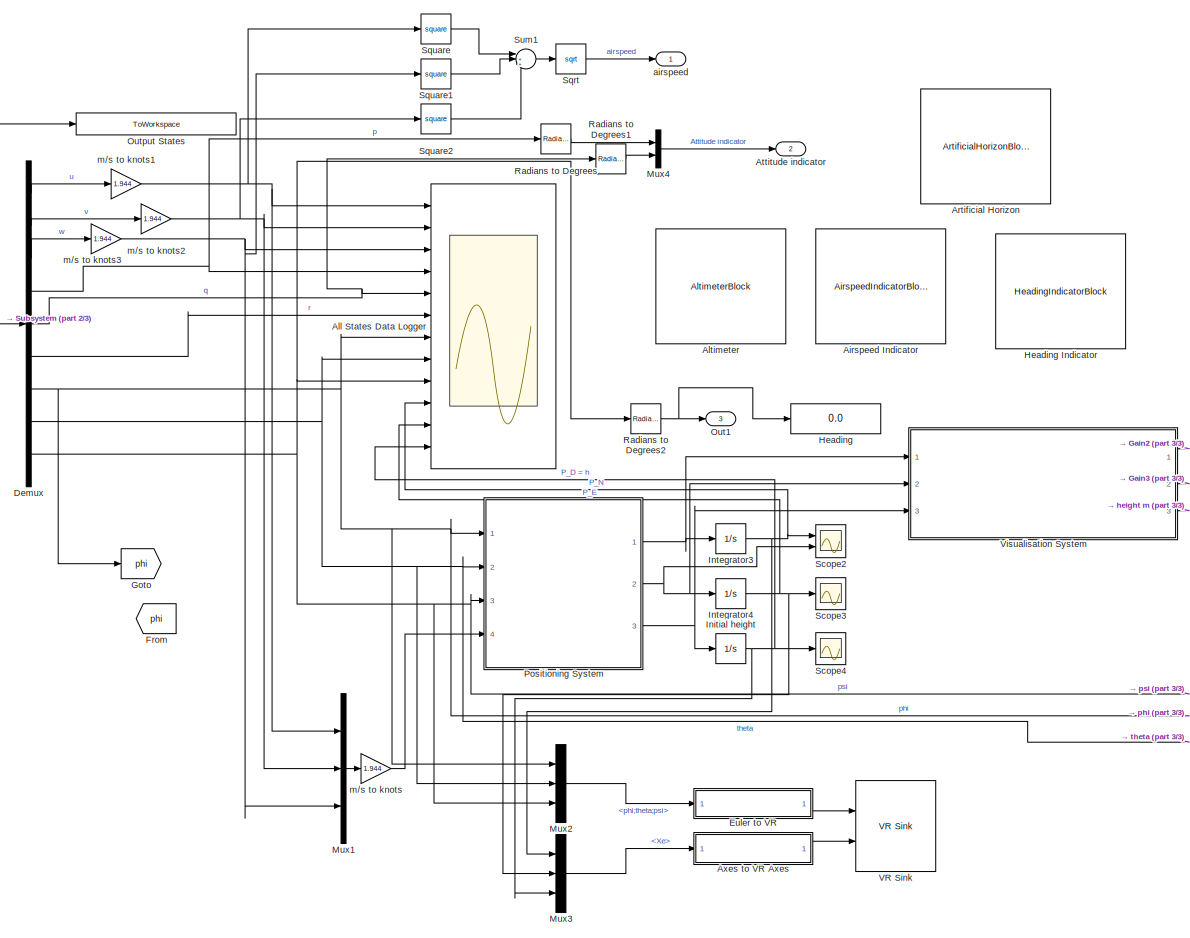
[diagram: root canvas - part 1/3, center side, full height]
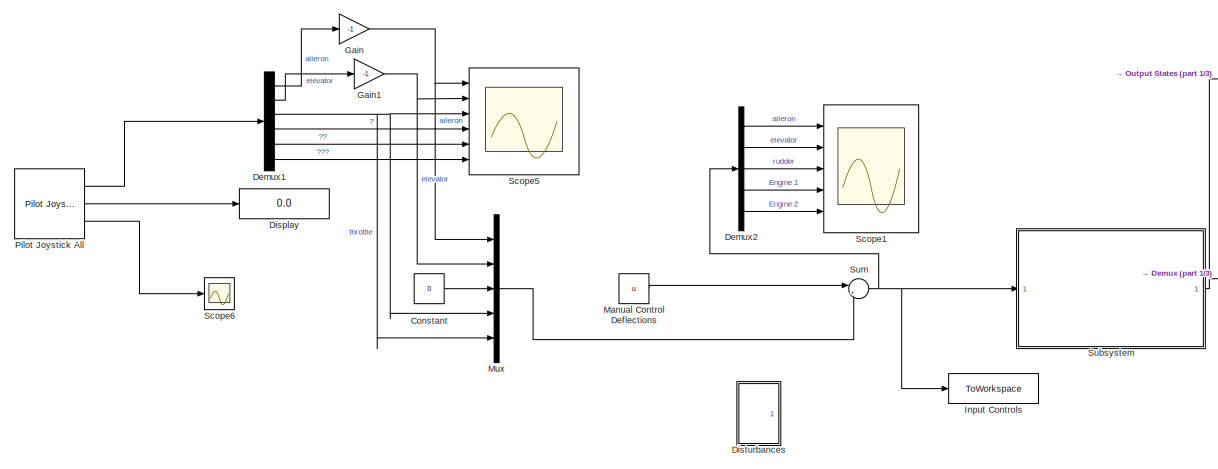
[diagram: root canvas - part 2/3, top left region]
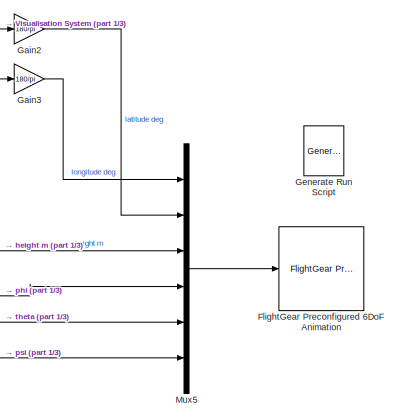
[diagram: root canvas - part 3/3, bottom right region]
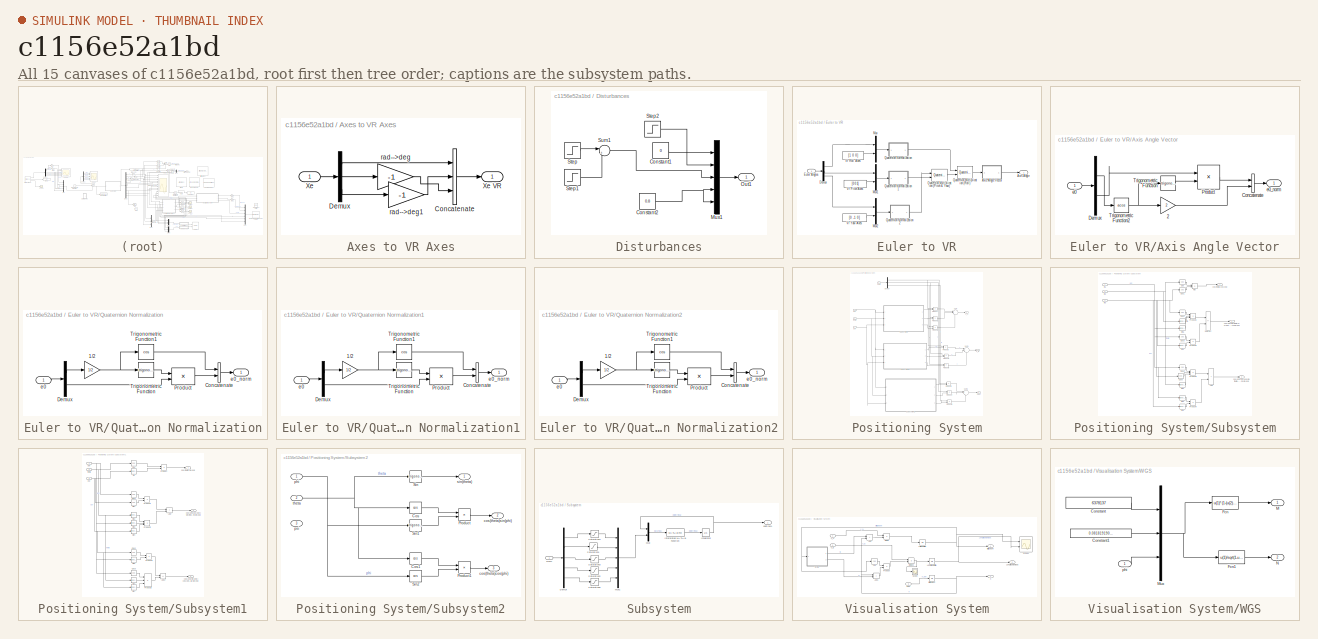
[diagram: thumbnail index - all 15 canvases of the model, root first then tree order]
MODEL slx_c1156e52a1bd
KIND model
CONFIG AbsTol = auto
CONFIG EnableMultiTasking = off
CONFIG FixedStep = 0.02
CONFIG MaxStep = auto
CONFIG MinStep = auto
CONFIG RelTol = 1e-3
CONFIG SampleTimeConstraint = Unconstrained
CONFIG Solver = ode15s
CONFIG SolverName = ode15s
CONFIG StartTime = 0.0
CONFIG StopTime = 1000
BLOCK [AirspeedIndicatorBlock] Airspeed Indicator
  ScaleMax = 350
BLOCK [Scope] All States Data Logger
  Floating = off
  NumInputPorts = 12
  Ports = [12]
  ScopeSpecificationString = Simulink.scopes.TimeScopeBlockCfg('CurrentConfiguration', extmgr.ConfigurationSet(extmgr.Configuration('Core','General UI',true),extmgr.Configuration('Core','Source UI',true),extmgr.Configuration('Sources','WiredSimulink',true,'DataLoggingVariableName','ScopeData1'),extmgr.Configuration('Visuals','Time Domain',true,'SerializedDisplays',{struct('MinYLimReal','74.04926','MaxYLimReal','169.40035','YL...<+9052ch>
BLOCK [AltimeterBlock] Altimeter
BLOCK [ArtificialHorizonBlock] Artificial Horizon
BLOCK [Outport] Attitude indicator
  Port = 2
BLOCK [SubSystem] Axes to VR Axes
  Ports = [1, 1]
  RequestExecContextInheritance = off
BLOCK [Concatenate] Axes to VR Axes/Concatenate
  NumInputs = 3
  Ports = [3, 1]
BLOCK [Demux] Axes to VR Axes/Demux
  DisplayOption = none
  Outputs = 3
  Ports = [1, 3]
BLOCK [Inport] Axes to VR Axes/Xe
BLOCK [Outport] Axes to VR Axes/Xe VR
  VectorParamsAs1DForOutWhenUnconnected = off
BLOCK [Gain] Axes to VR Axes/rad-->deg
  Gain = -1
  NameLocation = top
  OutDataTypeStr = Inherit: Same as input
  ParamDataTypeStr = Inherit: Same as input
  SaturateOnIntegerOverflow = on
BLOCK [Gain] Axes to VR Axes/rad-->deg1
  Gain = -1
  NameLocation = top
  OutDataTypeStr = Inherit: Same as input
  ParamDataTypeStr = Inherit: Same as input
  SaturateOnIntegerOverflow = on
BLOCK [Constant] Constant
  Value = 0
BLOCK [Demux] Demux
  Outputs = 9
  Ports = [1, 9]
BLOCK [Demux] Demux1
  Outputs = 6
  Ports = [1, 6]
BLOCK [Demux] Demux2
  Outputs = 5
  Ports = [1, 5]
BLOCK [Display] Display
  Decimation = 1
  Ports = [1]
BLOCK [SubSystem] Disturbances
  Commented = on
  Ports = [0, 1]
  RequestExecContextInheritance = off
BLOCK [Constant] Disturbances/Constant1
  Value = 0
BLOCK [Constant] Disturbances/Constant2
  Value = 0.8
BLOCK [Mux] Disturbances/Mux1
  DisplayOption = bar
  Inputs = 5
  Ports = [5, 1]
BLOCK [Outport] Disturbances/Out1
BLOCK [Step] Disturbances/Step
  After = -25*(pi/180)
  SampleTime = 0
  Time = 10
BLOCK [Step] Disturbances/Step1
  After = 10*(pi/180)
  SampleTime = 0
  Time = 60
BLOCK [Step] Disturbances/Step2
  After = -10*(pi/180)
  SampleTime = 0
  Time = 5
BLOCK [Sum] Disturbances/Sum1
  Inputs = |++
  Ports = [2, 1]
BLOCK [SubSystem] Euler to VR
  Ports = [1, 1]
  RequestExecContextInheritance = off
BLOCK [Outport] Euler to VR/Axis Angle
  VectorParamsAs1DForOutWhenUnconnected = off
BLOCK [SubSystem] Euler to VR/Axis Angle Vector
  Ports = [1, 1]
  RequestExecContextInheritance = off
BLOCK [Gain] Euler to VR/Axis Angle Vector/2
  Gain = 2
  OutDataTypeStr = Inherit: Same as input
  ParamDataTypeStr = Inherit: Same as input
  SaturateOnIntegerOverflow = on
BLOCK [Concatenate] Euler to VR/Axis Angle Vector/Concatenate
  Ports = [2, 1]
BLOCK [Demux] Euler to VR/Axis Angle Vector/Demux
  DisplayOption = none
  Outputs = [1 3 ]
  Ports = [1, 2]
BLOCK [Product] Euler to VR/Axis Angle Vector/Product
  InputSameDT = on
  Inputs = */
  OutDataTypeStr = Inherit: Same as first input
  Ports = [2, 1]
  SaturateOnIntegerOverflow = on
BLOCK [Trigonometry] Euler to VR/Axis Angle Vector/Trigonometric Function
  Ports = [1, 1]
BLOCK [Trigonometry] Euler to VR/Axis Angle Vector/Trigonometric Function2
  Operator = acos
  Ports = [1, 1]
BLOCK [Inport] Euler to VR/Axis Angle Vector/e0
BLOCK [Outport] Euler to VR/Axis Angle Vector/e0_norm
  VectorParamsAs1DForOutWhenUnconnected = off
BLOCK [Demux] Euler to VR/Demux
  DisplayOption = none
  Outputs = 3
  Ports = [1, 3]
BLOCK [Inport] Euler to VR/Euler Angles
BLOCK [Mux] Euler to VR/Mux
  DisplayOption = bar
  Inputs = 2
  Ports = [2, 1]
BLOCK [Mux] Euler to VR/Mux1
  DisplayOption = bar
  Inputs = 2
  Ports = [2, 1]
BLOCK [Mux] Euler to VR/Mux2
  DisplayOption = bar
  Inputs = 2
  Ports = [2, 1]
BLOCK [Reference] Euler to VR/Quaternion Multiplication (Pitch & Yaw)  REF=aerolibutil/Quaternion
Multiplication
  Ports = [2, 1]
  SourceBlock = aerolibutil/Quaternion\nMultiplication
  SourceProductBaseCode = AE
  SourceType = Quaternion Multiplication
BLOCK [Reference] Euler to VR/Quaternion Multiplication (Roll)  REF=aerolibutil/Quaternion
Multiplication
  Ports = [2, 1]
  SourceBlock = aerolibutil/Quaternion\nMultiplication
  SourceProductBaseCode = AE
  SourceType = Quaternion Multiplication
BLOCK [SubSystem] Euler to VR/Quaternion Normalization
  Ports = [1, 1]
  RequestExecContextInheritance = off
BLOCK [Gain] Euler to VR/Quaternion Normalization/1//2
  Gain = 1/2
  OutDataTypeStr = Inherit: Same as input
  ParamDataTypeStr = Inherit: Same as input
  SaturateOnIntegerOverflow = on
BLOCK [Concatenate] Euler to VR/Quaternion Normalization/Concatenate
  Ports = [2, 1]
BLOCK [Demux] Euler to VR/Quaternion Normalization/Demux
  DisplayOption = none
  Outputs = [1 3]
  Ports = [1, 2]
BLOCK [Product] Euler to VR/Quaternion Normalization/Product
  InputSameDT = on
  OutDataTypeStr = Inherit: Same as first input
  Ports = [2, 1]
  SaturateOnIntegerOverflow = on
BLOCK [Trigonometry] Euler to VR/Quaternion Normalization/Trigonometric Function
  Ports = [1, 1]
BLOCK [Trigonometry] Euler to VR/Quaternion Normalization/Trigonometric Function1
  Operator = cos
  Ports = [1, 1]
BLOCK [Inport] Euler to VR/Quaternion Normalization/e0
BLOCK [Outport] Euler to VR/Quaternion Normalization/e0_norm
  VectorParamsAs1DForOutWhenUnconnected = off
BLOCK [SubSystem] Euler to VR/Quaternion Normalization1
  Ports = [1, 1]
  RequestExecContextInheritance = off
BLOCK [Gain] Euler to VR/Quaternion Normalization1/1//2
  Gain = 1/2
  OutDataTypeStr = Inherit: Same as input
  ParamDataTypeStr = Inherit: Same as input
  SaturateOnIntegerOverflow = on
BLOCK [Concatenate] Euler to VR/Quaternion Normalization1/Concatenate
  Ports = [2, 1]
BLOCK [Demux] Euler to VR/Quaternion Normalization1/Demux
  DisplayOption = none
  Outputs = [1 3]
  Ports = [1, 2]
BLOCK [Product] Euler to VR/Quaternion Normalization1/Product
  InputSameDT = on
  OutDataTypeStr = Inherit: Same as first input
  Ports = [2, 1]
  SaturateOnIntegerOverflow = on
BLOCK [Trigonometry] Euler to VR/Quaternion Normalization1/Trigonometric Function
  Ports = [1, 1]
BLOCK [Trigonometry] Euler to VR/Quaternion Normalization1/Trigonometric Function1
  Operator = cos
  Ports = [1, 1]
BLOCK [Inport] Euler to VR/Quaternion Normalization1/e0
BLOCK [Outport] Euler to VR/Quaternion Normalization1/e0_norm
  VectorParamsAs1DForOutWhenUnconnected = off
BLOCK [SubSystem] Euler to VR/Quaternion Normalization2
  Ports = [1, 1]
  RequestExecContextInheritance = off
BLOCK [Gain] Euler to VR/Quaternion Normalization2/1//2
  Gain = 1/2
  OutDataTypeStr = Inherit: Same as input
  ParamDataTypeStr = Inherit: Same as input
  SaturateOnIntegerOverflow = on
BLOCK [Concatenate] Euler to VR/Quaternion Normalization2/Concatenate
  Ports = [2, 1]
BLOCK [Demux] Euler to VR/Quaternion Normalization2/Demux
  DisplayOption = none
  Outputs = [1 3]
  Ports = [1, 2]
BLOCK [Product] Euler to VR/Quaternion Normalization2/Product
  InputSameDT = on
  OutDataTypeStr = Inherit: Same as first input
  Ports = [2, 1]
  SaturateOnIntegerOverflow = on
BLOCK [Trigonometry] Euler to VR/Quaternion Normalization2/Trigonometric Function
  Ports = [1, 1]
BLOCK [Trigonometry] Euler to VR/Quaternion Normalization2/Trigonometric Function1
  Operator = cos
  Ports = [1, 1]
BLOCK [Inport] Euler to VR/Quaternion Normalization2/e0
BLOCK [Outport] Euler to VR/Quaternion Normalization2/e0_norm
  VectorParamsAs1DForOutWhenUnconnected = off
BLOCK [Constant] Euler to VR/Vr Pitch Axes
  NameLocation = top
  Value = [0 0 1]
BLOCK [Constant] Euler to VR/Vr Roll Axes
  NameLocation = top
  Value = [1 0 0]
BLOCK [Constant] Euler to VR/Vr Yaw Axes
  Value = [0 -1 0]
BLOCK [Reference] FlightGear Preconfigured 6DoF Animation  REF=aerolibfltsims/FlightGear
Preconfigured
6DoF Animation
  AttributesFormatString = Version Selected: %<xFlightGearVersion>
  Ports = [1]
  SourceBlock = aerolibfltsims/FlightGear\nPreconfigured\n6DoF Animation
  SourceProductBaseCode = AE
  SourceType = FlightGearQuick6DoFAnimation
BLOCK [From] From
  GotoTag = phi
BLOCK [Gain] Gain
  Gain = -1
BLOCK [Gain] Gain1
  Gain = -1
BLOCK [Gain] Gain2
  Gain = 180/pi
BLOCK [Gain] Gain3
  Gain = 180/pi
BLOCK [Reference] Generate Run Script  REF=aerolibfltsims/Generate
Run Script
  Ports = []
  SourceBlock = aerolibfltsims/Generate\nRun Script
  SourceProductBaseCode = AE
  SourceType = Generate FlightGear Run Script
BLOCK [Goto] Goto
  GotoTag = phi
BLOCK [Display] Heading
  Decimation = 1
  Ports = [1]
BLOCK [HeadingIndicatorBlock] Heading Indicator
BLOCK [Integrator] Initial height
  InitialCondition = 1000
  Ports = [1, 1]
BLOCK [ToWorkspace] Input Controls
  FixptAsFi = on
  MaxDataPoints = inf
  Ports = [1]
  SampleTime = -1
  SaveFormat = Timeseries
  VariableName = simU
BLOCK [Integrator] Integrator3
  Ports = [1, 1]
BLOCK [Integrator] Integrator4
  Ports = [1, 1]
BLOCK [Constant] Manual Control Deflections
  Value = u
BLOCK [Mux] Mux
  DisplayOption = bar
  Inputs = 5
  Ports = [5, 1]
BLOCK [Mux] Mux1
  DisplayOption = bar
  Inputs = 3
  Ports = [3, 1]
BLOCK [Mux] Mux2
  DisplayOption = bar
  Inputs = 3
  Ports = [3, 1]
BLOCK [Mux] Mux3
  DisplayOption = bar
  Inputs = 3
  Ports = [3, 1]
BLOCK [Mux] Mux4
  DisplayOption = bar
  Inputs = 2
  Ports = [2, 1]
BLOCK [Mux] Mux5
  DisplayOption = bar
  Inputs = 6
  Ports = [6, 1]
BLOCK [Outport] Out1
  Port = 3
BLOCK [ToWorkspace] Output States
  FixptAsFi = on
  MaxDataPoints = inf
  Ports = [1]
  SampleTime = -1
  SaveFormat = Timeseries
  VariableName = simX
BLOCK [Reference] Pilot Joystick All  REF=aerolibanimutils/Pilot Joystick
  Ports = [0, 3]
  SourceBlock = aerolibanimutils/Pilot Joystick
  SourceProductBaseCode = AE
  SourceType = PilotJoystick
BLOCK [SubSystem] Positioning System
  Ports = [4, 3]
  RequestExecContextInheritance = off
BLOCK [Demux] Positioning System/Demux
  Outputs = 3
  Ports = [1, 3]
BLOCK [Product] Positioning System/Product
  Ports = [2, 1]
BLOCK [Product] Positioning System/Product1
  Ports = [2, 1]
BLOCK [Product] Positioning System/Product2
  Ports = [2, 1]
BLOCK [Product] Positioning System/Product3
  Ports = [2, 1]
BLOCK [Product] Positioning System/Product4
  Ports = [2, 1]
BLOCK [Product] Positioning System/Product5
  Ports = [2, 1]
BLOCK [Product] Positioning System/Product6
  Ports = [2, 1]
BLOCK [Product] Positioning System/Product7
  Ports = [2, 1]
BLOCK [Product] Positioning System/Product8
  Ports = [2, 1]
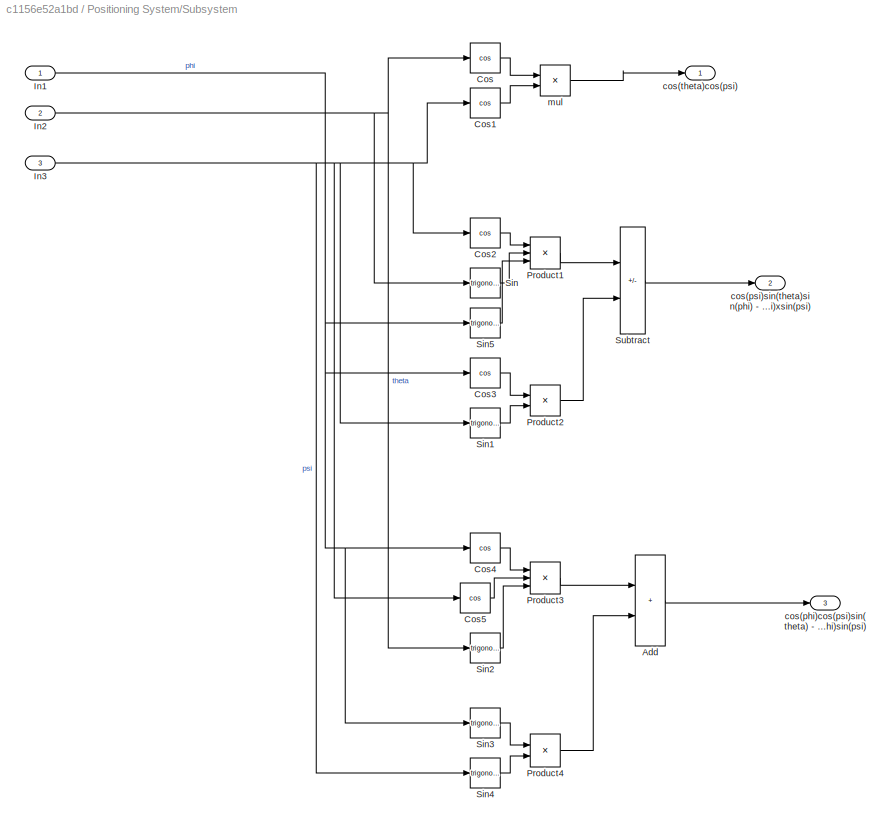
BLOCK [SubSystem] Positioning System/Subsystem
  Ports = [3, 3]
  RequestExecContextInheritance = off
BLOCK [Sum] Positioning System/Subsystem/Add
  IconShape = rectangular
  Ports = [2, 1]
BLOCK [Trigonometry] Positioning System/Subsystem/Cos
  Operator = cos
  Ports = [1, 1]
BLOCK [Trigonometry] Positioning System/Subsystem/Cos1
  Operator = cos
  Ports = [1, 1]
BLOCK [Trigonometry] Positioning System/Subsystem/Cos2
  Operator = cos
  Ports = [1, 1]
BLOCK [Trigonometry] Positioning System/Subsystem/Cos3
  Operator = cos
  Ports = [1, 1]
BLOCK [Trigonometry] Positioning System/Subsystem/Cos4
  Operator = cos
  Ports = [1, 1]
BLOCK [Trigonometry] Positioning System/Subsystem/Cos5
  Operator = cos
  Ports = [1, 1]
BLOCK [Inport] Positioning System/Subsystem/In1
BLOCK [Inport] Positioning System/Subsystem/In2
  Port = 2
BLOCK [Inport] Positioning System/Subsystem/In3
  Port = 3
BLOCK [Product] Positioning System/Subsystem/Product1
  Inputs = 3
  Ports = [3, 1]
BLOCK [Product] Positioning System/Subsystem/Product2
  Ports = [2, 1]
BLOCK [Product] Positioning System/Subsystem/Product3
  Inputs = 3
  Ports = [3, 1]
BLOCK [Product] Positioning System/Subsystem/Product4
  Ports = [2, 1]
BLOCK [Trigonometry] Positioning System/Subsystem/Sin
  Ports = [1, 1]
BLOCK [Trigonometry] Positioning System/Subsystem/Sin1
  Ports = [1, 1]
BLOCK [Trigonometry] Positioning System/Subsystem/Sin2
  Ports = [1, 1]
BLOCK [Trigonometry] Positioning System/Subsystem/Sin3
  Ports = [1, 1]
BLOCK [Trigonometry] Positioning System/Subsystem/Sin4
  Ports = [1, 1]
BLOCK [Trigonometry] Positioning System/Subsystem/Sin5
  Ports = [1, 1]
BLOCK [Sum] Positioning System/Subsystem/Subtract
  IconShape = rectangular
  Inputs = +-
  Ports = [2, 1]
BLOCK [Outport] Positioning System/Subsystem/cos(phi)cos(psi)sin(theta) - sin(phi)sin(psi)
  Port = 3
BLOCK [Outport] Positioning System/Subsystem/cos(psi)sin(theta)sin(phi) - cos(phi)xsin(psi)
  Port = 2
BLOCK [Outport] Positioning System/Subsystem/cos(theta)cos(psi)
BLOCK [Product] Positioning System/Subsystem/mul
  Ports = [2, 1]
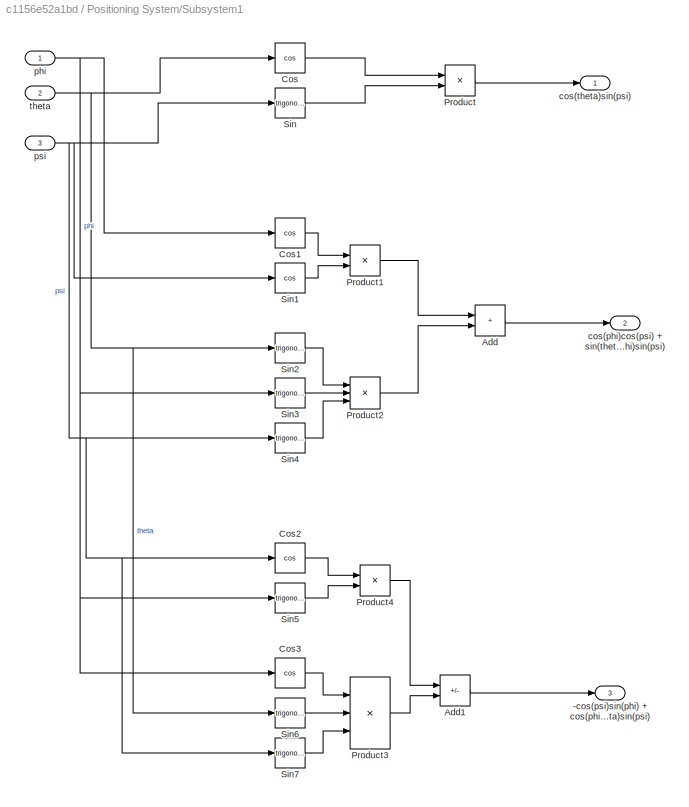
BLOCK [SubSystem] Positioning System/Subsystem1
  Ports = [3, 3]
  RequestExecContextInheritance = off
BLOCK [Outport] Positioning System/Subsystem1/-cos(psi)sin(phi) + cos(phi)sin(theta)sin(psi)
  Port = 3
BLOCK [Sum] Positioning System/Subsystem1/Add
  IconShape = rectangular
  Ports = [2, 1]
BLOCK [Sum] Positioning System/Subsystem1/Add1
  IconShape = rectangular
  Inputs = -+
  Ports = [2, 1]
BLOCK [Trigonometry] Positioning System/Subsystem1/Cos
  Operator = cos
  Ports = [1, 1]
BLOCK [Trigonometry] Positioning System/Subsystem1/Cos1
  Operator = cos
  Ports = [1, 1]
BLOCK [Trigonometry] Positioning System/Subsystem1/Cos2
  Operator = cos
  Ports = [1, 1]
BLOCK [Trigonometry] Positioning System/Subsystem1/Cos3
  Operator = cos
  Ports = [1, 1]
BLOCK [Product] Positioning System/Subsystem1/Product
  Ports = [2, 1]
BLOCK [Product] Positioning System/Subsystem1/Product1
  Ports = [2, 1]
BLOCK [Product] Positioning System/Subsystem1/Product2
  Inputs = 3
  Ports = [3, 1]
BLOCK [Product] Positioning System/Subsystem1/Product3
  Inputs = 3
  Ports = [3, 1]
BLOCK [Product] Positioning System/Subsystem1/Product4
  Ports = [2, 1]
BLOCK [Trigonometry] Positioning System/Subsystem1/Sin
  Ports = [1, 1]
BLOCK [Trigonometry] Positioning System/Subsystem1/Sin1
  Operator = cos
  Ports = [1, 1]
BLOCK [Trigonometry] Positioning System/Subsystem1/Sin2
  Ports = [1, 1]
BLOCK [Trigonometry] Positioning System/Subsystem1/Sin3
  Ports = [1, 1]
BLOCK [Trigonometry] Positioning System/Subsystem1/Sin4
  Ports = [1, 1]
BLOCK [Trigonometry] Positioning System/Subsystem1/Sin5
  Ports = [1, 1]
BLOCK [Trigonometry] Positioning System/Subsystem1/Sin6
  Ports = [1, 1]
BLOCK [Trigonometry] Positioning System/Subsystem1/Sin7
  Ports = [1, 1]
BLOCK [Outport] Positioning System/Subsystem1/cos(phi)cos(psi) + sin(theta)sin(phi)sin(psi)
  Port = 2
BLOCK [Outport] Positioning System/Subsystem1/cos(theta)sin(psi)
BLOCK [Inport] Positioning System/Subsystem1/phi
BLOCK [Inport] Positioning System/Subsystem1/psi
  Port = 3
BLOCK [Inport] Positioning System/Subsystem1/theta
  Port = 2
BLOCK [SubSystem] Positioning System/Subsystem2
  Ports = [3, 3]
  RequestExecContextInheritance = off
BLOCK [Trigonometry] Positioning System/Subsystem2/Cos
  Operator = cos
  Ports = [1, 1]
BLOCK [Trigonometry] Positioning System/Subsystem2/Cos1
  Operator = cos
  Ports = [1, 1]
BLOCK [Product] Positioning System/Subsystem2/Product
  Ports = [2, 1]
BLOCK [Product] Positioning System/Subsystem2/Product1
  Ports = [2, 1]
BLOCK [Trigonometry] Positioning System/Subsystem2/Sin
  Ports = [1, 1]
BLOCK [Trigonometry] Positioning System/Subsystem2/Sin1
  Ports = [1, 1]
BLOCK [Trigonometry] Positioning System/Subsystem2/Sin2
  Operator = cos
  Ports = [1, 1]
BLOCK [Outport] Positioning System/Subsystem2/cos(theta)cos(phi)
  Port = 3
BLOCK [Outport] Positioning System/Subsystem2/cos(theta)sin(phi)
  Port = 2
BLOCK [Inport] Positioning System/Subsystem2/phi
BLOCK [Inport] Positioning System/Subsystem2/psi
  Port = 3
BLOCK [Outport] Positioning System/Subsystem2/sin(theta)
BLOCK [Inport] Positioning System/Subsystem2/theta
  Port = 2
BLOCK [Sum] Positioning System/Sum
  Inputs = |+++
  Ports = [3, 1]
BLOCK [Sum] Positioning System/Sum1
  Inputs = |+++
  Ports = [3, 1]
BLOCK [Sum] Positioning System/Sum2
  Inputs = |+--
  Ports = [3, 1]
BLOCK [Outport] Positioning System/V_E
  Port = 2
BLOCK [Outport] Positioning System/V_N
BLOCK [Outport] Positioning System/hdot
  Port = 3
BLOCK [Inport] Positioning System/phi
BLOCK [Inport] Positioning System/psi
  Port = 3
BLOCK [Inport] Positioning System/theta
  Port = 2
BLOCK [Inport] Positioning System/u,v,w
  Port = 4
BLOCK [Reference] Radians to Degrees  REF=simulink_extras/Transformations/Radians
to Degrees
  Ports = [1, 1]
  SourceBlock = simulink_extras/Transformations/Radians\nto Degrees
  SourceProductBaseCode = SL
  SourceType = RadiansToDegrees
BLOCK [Reference] Radians to Degrees1  REF=simulink_extras/Transformations/Radians
to Degrees
  Ports = [1, 1]
  SourceBlock = simulink_extras/Transformations/Radians\nto Degrees
  SourceProductBaseCode = SL
  SourceType = RadiansToDegrees
BLOCK [Reference] Radians to Degrees2  REF=simulink_extras/Transformations/Radians
to Degrees
  Ports = [1, 1]
  SourceBlock = simulink_extras/Transformations/Radians\nto Degrees
  SourceProductBaseCode = SL
  SourceType = RadiansToDegrees
BLOCK [Scope] Scope1
  Floating = off
  NumInputPorts = 5
  Ports = [5]
  ScopeSpecificationString = Simulink.scopes.TimeScopeBlockCfg('CurrentConfiguration', extmgr.ConfigurationSet(extmgr.Configuration('Core','General UI',true),extmgr.Configuration('Core','Source UI',true),extmgr.Configuration('Sources','WiredSimulink',true,'DataLoggingVariableName','ScopeData1'),extmgr.Configuration('Visuals','Time Domain',true,'SerializedDisplays',{struct('MinYLimReal','-1.00000','MaxYLimReal','1.00000','YLab...<+6321ch>
BLOCK [Scope] Scope2
  Floating = off
  NumInputPorts = 2
  Ports = [2]
  ScopeSpecificationString = Simulink.scopes.TimeScopeBlockCfg('CurrentConfiguration', extmgr.ConfigurationSet(extmgr.Configuration('Core','General UI',true),extmgr.Configuration('Core','Source UI',true),extmgr.Configuration('Sources','WiredSimulink',true,'DataLoggingVariableName','ScopeData2'),extmgr.Configuration('Visuals','Time Domain',true,'SerializedDisplays',{struct('MinYLimReal','-120.63482','MaxYLimReal','1085.71334',...<+1756ch>
BLOCK [Scope] Scope3
  Floating = off
  NumInputPorts = 1
  Ports = [1]
  ScopeSpecificationString = Simulink.scopes.TimeScopeBlockCfg('CurrentConfiguration', extmgr.ConfigurationSet(extmgr.Configuration('Core','General UI',true),extmgr.Configuration('Core','Source UI',true),extmgr.Configuration('Sources','WiredSimulink',true,'DataLoggingVariableName','ScopeData3'),extmgr.Configuration('Visuals','Time Domain',true,'SerializedDisplays',{struct('MinYLimReal','-1.00000','MaxYLimReal','1.00000','YLab...<+1362ch>
BLOCK [Scope] Scope4
  Floating = off
  NumInputPorts = 1
  Ports = [1]
  ScopeSpecificationString = Simulink.scopes.TimeScopeBlockCfg('CurrentConfiguration', extmgr.ConfigurationSet(extmgr.Configuration('Core','General UI',true),extmgr.Configuration('Core','Source UI',true),extmgr.Configuration('Sources','WiredSimulink',true,'DataLoggingVariableName','ScopeData4'),extmgr.Configuration('Visuals','Time Domain',true,'SerializedDisplays',{struct('MinYLimReal','-21153.0035','MaxYLimReal','13461.46326...<+1440ch>
BLOCK [Scope] Scope5
  Floating = off
  NumInputPorts = 6
  Ports = [6]
  ScopeSpecificationString = Simulink.scopes.TimeScopeBlockCfg('CurrentConfiguration', extmgr.ConfigurationSet(extmgr.Configuration('Core','General UI',true),extmgr.Configuration('Core','Source UI',true),extmgr.Configuration('Sources','WiredSimulink',true,'DataLoggingVariableName','ScopeData1'),extmgr.Configuration('Visuals','Time Domain',true,'SerializedDisplays',{struct('MinYLimReal','-1.22855','MaxYLimReal','1.05664','YLab...<+4789ch>
BLOCK [Scope] Scope6
  Floating = off
  NumInputPorts = 1
  Ports = [1]
  ScopeSpecificationString = Simulink.scopes.TimeScopeBlockCfg('CurrentConfiguration', extmgr.ConfigurationSet(extmgr.Configuration('Core','General UI',true),extmgr.Configuration('Core','Source UI',true),extmgr.Configuration('Sources','WiredSimulink',true,'DataLoggingVariableName','ScopeData2'),extmgr.Configuration('Visuals','Time Domain',true,'SerializedDisplays',{struct('MinYLimReal','-1.00000','MaxYLimReal','1.00000','YLab...<+1410ch>
BLOCK [Sqrt] Sqrt
BLOCK [Math] Square
  Operator = square
  Ports = [1, 1]
BLOCK [Math] Square1
  Operator = square
  Ports = [1, 1]
BLOCK [Math] Square2
  Operator = square
  Ports = [1, 1]
BLOCK [SubSystem] Subsystem
  Ports = [1, 1]
  RequestExecContextInheritance = off
BLOCK [Demux] Subsystem/Demux
  Outputs = 5
  Ports = [1, 5]
BLOCK [Integrator] Subsystem/Integrator
  InitialCondition = x0
  Ports = [1, 1]
BLOCK [MATLABFcn] Subsystem/Interpreted MATLAB Function
  MATLABFcn = RCAM_plant(u(1:9),u(10:14))
  Ports = [1, 1]
BLOCK [Mux] Subsystem/Mux
  DisplayOption = bar
  Inputs = 2
  Ports = [2, 1]
BLOCK [Mux] Subsystem/Mux1
  DisplayOption = bar
  Inputs = 5
  Ports = [5, 1]
BLOCK [Saturate] Subsystem/Saturation1
  LowerLimit = u2min
  UpperLimit = u2max
BLOCK [Saturate] Subsystem/Saturation2
  LowerLimit = u4min
  UpperLimit = u4max
BLOCK [Saturate] Subsystem/Saturation3
  LowerLimit = u3min
  UpperLimit = u3max
BLOCK [Saturate] Subsystem/Saturation4
  LowerLimit = u1min
  UpperLimit = u1max
BLOCK [Saturate] Subsystem/Saturation6
  LowerLimit = u5min
  UpperLimit = u5max
BLOCK [Inport] Subsystem/u(5x1)
BLOCK [Outport] Subsystem/xdot(9x1)
BLOCK [Sum] Sum
  Inputs = |++
  Ports = [2, 1]
BLOCK [Sum] Sum1
  Inputs = |+++
  Ports = [3, 1]
BLOCK [Reference] VR Sink  REF=vrlib/VR Sink
  InstantiateOnLoad = on
  Ports = [2]
  SourceBlock = vrlib/VR Sink
  SourceProductBaseCode = SL
  SourceType = Virtual Reality Sink
BLOCK [SubSystem] Visualisation System
  Ports = [3, 3]
  RequestExecContextInheritance = off
BLOCK [Sum] Visualisation System/Add
  IconShape = rectangular
  Ports = [2, 1]
BLOCK [Sum] Visualisation System/Add1
  IconShape = rectangular
  Ports = [2, 1]
BLOCK [Trigonometry] Visualisation System/Cos
  ApproximationMethod = CORDIC
  Operator = cos
  Ports = [1, 1]
BLOCK [Product] Visualisation System/Divide
  Inputs = */
  Ports = [2, 1]
BLOCK [Product] Visualisation System/Divide2
  Inputs = */
  Ports = [2, 1]
BLOCK [Integrator] Visualisation System/Initial height
  InitialCondition = 1000
  Ports = [1, 1]
BLOCK [Integrator] Visualisation System/Latitude initial 
  InitialCondition = deg2rad(21.32451389)
  Ports = [1, 1]
BLOCK [Integrator] Visualisation System/Longitude initial
  InitialCondition = deg2rad(-157.92507222)
  Ports = [1, 1]
BLOCK [Outport] Visualisation System/Longitude lambda
  Port = 2
BLOCK [Product] Visualisation System/Product
  Ports = [2, 1]
BLOCK [Scope] Visualisation System/Scope
  Floating = off
  NumInputPorts = 1
  Ports = [1]
  ScopeSpecificationString = Simulink.scopes.TimeScopeBlockCfg('CurrentConfiguration', extmgr.ConfigurationSet(extmgr.Configuration('Core','General UI',true),extmgr.Configuration('Core','Source UI',true),extmgr.Configuration('Sources','WiredSimulink',true,'DataLoggingVariableName','ScopeData1'),extmgr.Configuration('Visuals','Time Domain',true,'SerializedDisplays',{struct('MinYLimReal','-1.00000','MaxYLimReal','1.00000','YLab...<+1366ch>
BLOCK [Scope] Visualisation System/Scope1
  Floating = off
  NumInputPorts = 2
  Ports = [2]
  ScopeSpecificationString = Simulink.scopes.TimeScopeBlockCfg('CurrentConfiguration', extmgr.ConfigurationSet(extmgr.Configuration('Core','General UI',true),extmgr.Configuration('Core','Source UI',true),extmgr.Configuration('Sources','WiredSimulink',true,'DataLoggingVariableName','ScopeData2'),extmgr.Configuration('Visuals','Time Domain',true,'SerializedDisplays',{struct('MinYLimReal','-180.33127','MaxYLimReal','43.73071','Y...<+1764ch>
BLOCK [Inport] Visualisation System/V_E
  Port = 2
BLOCK [Inport] Visualisation System/V_N
BLOCK [SubSystem] Visualisation System/WGS
  Ports = [1, 2]
  RequestExecContextInheritance = off
BLOCK [Constant] Visualisation System/WGS/Constant
  Value = 6378137
BLOCK [Constant] Visualisation System/WGS/Constant1
  Value = 0.081819190842622
BLOCK [Fcn] Visualisation System/WGS/Fcn
  Expr = u(1)*(1-(u(2)^2))/((1-(u(2)^2)*(sin(u(3))^2))^(3/2))
BLOCK [Fcn] Visualisation System/WGS/Fcn1
  Expr = u(1)/sqrt(1-u(2)^2)*(sin(u(3))^2)
BLOCK [Outport] Visualisation System/WGS/M
BLOCK [Mux] Visualisation System/WGS/Mux
  DisplayOption = bar
  Inputs = 3
  Ports = [3, 1]
BLOCK [Outport] Visualisation System/WGS/N
  Port = 2
BLOCK [Inport] Visualisation System/WGS/phi
BLOCK [Outport] Visualisation System/h
  Port = 3
BLOCK [Inport] Visualisation System/hdot
  Port = 3
BLOCK [Outport] Visualisation System/latitude phi
BLOCK [Outport] airspeed
BLOCK [Gain] m//s to knots
  Gain = 1.944
BLOCK [Gain] m//s to knots1
  Gain = 1.944
BLOCK [Gain] m//s to knots2
  Gain = 1.944
BLOCK [Gain] m//s to knots3
  Gain = 1.944
LINE Axes to VR Axes/Concatenate:1 -> Axes to VR Axes/Xe VR:1
LINE Axes to VR Axes/Demux:1 -> Axes to VR Axes/Concatenate:1
LINE Axes to VR Axes/Demux:2 -> Axes to VR Axes/rad-->deg:1
LINE Axes to VR Axes/Demux:3 -> Axes to VR Axes/rad-->deg1:1
LINE Axes to VR Axes/Xe:1 -> Axes to VR Axes/Demux:1
LINE Axes to VR Axes/rad-->deg1:1 -> Axes to VR Axes/Concatenate:2
LINE Axes to VR Axes/rad-->deg:1 -> Axes to VR Axes/Concatenate:3
LINE Axes to VR Axes:1 -> VR Sink:2
LINE Constant:1 -> Mux:3
LINE Demux1:1 -> Gain:1
LINE Demux1:2 -> Gain1:1
NET Demux1:3 -> Mux:4, Mux:5, Scope5:3
LINE Demux1:4 -> Scope5:4
LINE Demux1:5 -> Scope5:5
LINE Demux1:6 -> Scope5:6
LINE Demux2:1 -> Scope1:1
LINE Demux2:2 -> Scope1:2
LINE Demux2:3 -> Scope1:3
LINE Demux2:4 -> Scope1:4
LINE Demux2:5 -> Scope1:5
LINE Demux:1 -> m//s to knots1:1
LINE Demux:2 -> m//s to knots2:1
LINE Demux:3 -> m//s to knots3:1
NET Demux:4 -> All States Data Logger:4, Radians to Degrees:1
NET Demux:5 -> All States Data Logger:5, Radians to Degrees1:1
LINE Demux:6 -> All States Data Logger:6
NET Demux:7 -> All States Data Logger:7, Goto:1, Mux2:1, Mux5:4, Positioning System:1
NET Demux:8 -> All States Data Logger:8, Mux2:2, Mux5:5, Positioning System:2
NET Demux:9 -> All States Data Logger:9, Mux2:3, Mux5:6, Positioning System:3, Radians to Degrees2:1
LINE Disturbances/Constant1:1 -> Disturbances/Mux1:1
NET Disturbances/Constant2:1 -> Disturbances/Mux1:4, Disturbances/Mux1:5
LINE Disturbances/Mux1:1 -> Disturbances/Out1:1
LINE Disturbances/Step1:1 -> Disturbances/Sum1:2
LINE Disturbances/Step2:1 -> Disturbances/Mux1:2
LINE Disturbances/Step:1 -> Disturbances/Sum1:1
LINE Disturbances/Sum1:1 -> Disturbances/Mux1:3
LINE Euler to VR/Axis Angle Vector/2:1 -> Euler to VR/Axis Angle Vector/Concatenate:2
LINE Euler to VR/Axis Angle Vector/Concatenate:1 -> Euler to VR/Axis Angle Vector/e0_norm:1
LINE Euler to VR/Axis Angle Vector/Demux:1 -> Euler to VR/Axis Angle Vector/Trigonometric Function2:1
LINE Euler to VR/Axis Angle Vector/Demux:2 -> Euler to VR/Axis Angle Vector/Product:1
LINE Euler to VR/Axis Angle Vector/Product:1 -> Euler to VR/Axis Angle Vector/Concatenate:1
NET Euler to VR/Axis Angle Vector/Trigonometric Function2:1 -> Euler to VR/Axis Angle Vector/2:1, Euler to VR/Axis Angle Vector/Trigonometric Function:1
LINE Euler to VR/Axis Angle Vector/Trigonometric Function:1 -> Euler to VR/Axis Angle Vector/Product:2
LINE Euler to VR/Axis Angle Vector/e0:1 -> Euler to VR/Axis Angle Vector/Demux:1
LINE Euler to VR/Axis Angle Vector:1 -> Euler to VR/Axis Angle:1
LINE Euler to VR/Demux:1 -> Euler to VR/Mux:1
LINE Euler to VR/Demux:2 -> Euler to VR/Mux1:1
LINE Euler to VR/Demux:3 -> Euler to VR/Mux2:1
LINE Euler to VR/Euler Angles:1 -> Euler to VR/Demux:1
LINE Euler to VR/Mux1:1 -> Euler to VR/Quaternion Normalization1:1
LINE Euler to VR/Mux2:1 -> Euler to VR/Quaternion Normalization2:1
LINE Euler to VR/Mux:1 -> Euler to VR/Quaternion Normalization:1
LINE Euler to VR/Quaternion Multiplication (Pitch & Yaw):1 -> Euler to VR/Quaternion Multiplication (Roll):2
LINE Euler to VR/Quaternion Multiplication (Roll):1 -> Euler to VR/Axis Angle Vector:1
NET Euler to VR/Quaternion Normalization/1//2:1 -> Euler to VR/Quaternion Normalization/Trigonometric Function1:1, Euler to VR/Quaternion Normalization/Trigonometric Function:1
LINE Euler to VR/Quaternion Normalization/Concatenate:1 -> Euler to VR/Quaternion Normalization/e0_norm:1
LINE Euler to VR/Quaternion Normalization/Demux:1 -> Euler to VR/Quaternion Normalization/1//2:1
LINE Euler to VR/Quaternion Normalization/Demux:2 -> Euler to VR/Quaternion Normalization/Product:2
LINE Euler to VR/Quaternion Normalization/Product:1 -> Euler to VR/Quaternion Normalization/Concatenate:2
LINE Euler to VR/Quaternion Normalization/Trigonometric Function1:1 -> Euler to VR/Quaternion Normalization/Concatenate:1
LINE Euler to VR/Quaternion Normalization/Trigonometric Function:1 -> Euler to VR/Quaternion Normalization/Product:1
LINE Euler to VR/Quaternion Normalization/e0:1 -> Euler to VR/Quaternion Normalization/Demux:1
NET Euler to VR/Quaternion Normalization1/1//2:1 -> Euler to VR/Quaternion Normalization1/Trigonometric Function1:1, Euler to VR/Quaternion Normalization1/Trigonometric Function:1
LINE Euler to VR/Quaternion Normalization1/Concatenate:1 -> Euler to VR/Quaternion Normalization1/e0_norm:1
LINE Euler to VR/Quaternion Normalization1/Demux:1 -> Euler to VR/Quaternion Normalization1/1//2:1
LINE Euler to VR/Quaternion Normalization1/Demux:2 -> Euler to VR/Quaternion Normalization1/Product:2
LINE Euler to VR/Quaternion Normalization1/Product:1 -> Euler to VR/Quaternion Normalization1/Concatenate:2
LINE Euler to VR/Quaternion Normalization1/Trigonometric Function1:1 -> Euler to VR/Quaternion Normalization1/Concatenate:1
LINE Euler to VR/Quaternion Normalization1/Trigonometric Function:1 -> Euler to VR/Quaternion Normalization1/Product:1
LINE Euler to VR/Quaternion Normalization1/e0:1 -> Euler to VR/Quaternion Normalization1/Demux:1
LINE Euler to VR/Quaternion Normalization1:1 -> Euler to VR/Quaternion Multiplication (Pitch & Yaw):2
NET Euler to VR/Quaternion Normalization2/1//2:1 -> Euler to VR/Quaternion Normalization2/Trigonometric Function1:1, Euler to VR/Quaternion Normalization2/Trigonometric Function:1
LINE Euler to VR/Quaternion Normalization2/Concatenate:1 -> Euler to VR/Quaternion Normalization2/e0_norm:1
LINE Euler to VR/Quaternion Normalization2/Demux:1 -> Euler to VR/Quaternion Normalization2/1//2:1
LINE Euler to VR/Quaternion Normalization2/Demux:2 -> Euler to VR/Quaternion Normalization2/Product:2
LINE Euler to VR/Quaternion Normalization2/Product:1 -> Euler to VR/Quaternion Normalization2/Concatenate:2
LINE Euler to VR/Quaternion Normalization2/Trigonometric Function1:1 -> Euler to VR/Quaternion Normalization2/Concatenate:1
LINE Euler to VR/Quaternion Normalization2/Trigonometric Function:1 -> Euler to VR/Quaternion Normalization2/Product:1
LINE Euler to VR/Quaternion Normalization2/e0:1 -> Euler to VR/Quaternion Normalization2/Demux:1
LINE Euler to VR/Quaternion Normalization2:1 -> Euler to VR/Quaternion Multiplication (Pitch & Yaw):1
LINE Euler to VR/Quaternion Normalization:1 -> Euler to VR/Quaternion Multiplication (Roll):1
LINE Euler to VR/Vr Pitch Axes:1 -> Euler to VR/Mux1:2
LINE Euler to VR/Vr Roll Axes:1 -> Euler to VR/Mux:2
LINE Euler to VR/Vr Yaw Axes:1 -> Euler to VR/Mux2:2
LINE Euler to VR:1 -> VR Sink:1
NET Gain1:1 -> Mux:2, Scope5:2
LINE Gain2:1 -> Mux5:2
LINE Gain3:1 -> Mux5:1
NET Gain:1 -> Mux:1, Scope5:1
NET Initial height:1 -> All States Data Logger:12, Mux3:3, Scope4:1
NET Integrator3:1 -> All States Data Logger:10, Mux3:1, Scope2:1
NET Integrator4:1 -> All States Data Logger:11, Mux3:2, Scope3:1
LINE Manual Control Deflections:1 -> Sum:1
LINE Mux1:1 -> m//s to knots:1
LINE Mux2:1 -> Euler to VR:1
LINE Mux3:1 -> Axes to VR Axes:1
LINE Mux4:1 -> Attitude indicator:1
LINE Mux5:1 -> FlightGear Preconfigured 6DoF Animation:1
LINE Mux:1 -> Sum:2
LINE Pilot Joystick All:1 -> Demux1:1
LINE Pilot Joystick All:2 -> Display:1
LINE Pilot Joystick All:3 -> Scope6:1
NET Positioning System/Demux:1 -> Positioning System/Product3:1, Positioning System/Product6:1, Positioning System/Product:1
NET Positioning System/Demux:2 -> Positioning System/Product1:1, Positioning System/Product4:1, Positioning System/Product7:1
NET Positioning System/Demux:3 -> Positioning System/Product2:1, Positioning System/Product5:1, Positioning System/Product8:1
LINE Positioning System/Product1:1 -> Positioning System/Sum:2
LINE Positioning System/Product2:1 -> Positioning System/Sum:3
LINE Positioning System/Product3:1 -> Positioning System/Sum1:1
LINE Positioning System/Product4:1 -> Positioning System/Sum1:2
LINE Positioning System/Product5:1 -> Positioning System/Sum1:3
LINE Positioning System/Product6:1 -> Positioning System/Sum2:1
LINE Positioning System/Product7:1 -> Positioning System/Sum2:2
LINE Positioning System/Product8:1 -> Positioning System/Sum2:3
LINE Positioning System/Product:1 -> Positioning System/Sum:1
LINE Positioning System/Subsystem/Add:1 -> Positioning System/Subsystem/cos(phi)cos(psi)sin(theta) - sin(phi)sin(psi):1
LINE Positioning System/Subsystem/Cos1:1 -> Positioning System/Subsystem/mul:2
LINE Positioning System/Subsystem/Cos2:1 -> Positioning System/Subsystem/Product1:1
LINE Positioning System/Subsystem/Cos3:1 -> Positioning System/Subsystem/Product2:1
LINE Positioning System/Subsystem/Cos4:1 -> Positioning System/Subsystem/Product3:1
LINE Positioning System/Subsystem/Cos5:1 -> Positioning System/Subsystem/Product3:2
LINE Positioning System/Subsystem/Cos:1 -> Positioning System/Subsystem/mul:1
NET Positioning System/Subsystem/In1:1 -> Positioning System/Subsystem/Cos3:1, Positioning System/Subsystem/Cos4:1, Positioning System/Subsystem/Sin3:1, Positioning System/Subsystem/Sin5:1
NET Positioning System/Subsystem/In2:1 -> Positioning System/Subsystem/Cos:1, Positioning System/Subsystem/Sin2:1, Positioning System/Subsystem/Sin:1
NET Positioning System/Subsystem/In3:1 -> Positioning System/Subsystem/Cos1:1, Positioning System/Subsystem/Cos2:1, Positioning System/Subsystem/Cos5:1, Positioning System/Subsystem/Sin1:1, Positioning System/Subsystem/Sin4:1
LINE Positioning System/Subsystem/Product1:1 -> Positioning System/Subsystem/Subtract:1
LINE Positioning System/Subsystem/Product2:1 -> Positioning System/Subsystem/Subtract:2
LINE Positioning System/Subsystem/Product3:1 -> Positioning System/Subsystem/Add:1
LINE Positioning System/Subsystem/Product4:1 -> Positioning System/Subsystem/Add:2
LINE Positioning System/Subsystem/Sin1:1 -> Positioning System/Subsystem/Product2:2
LINE Positioning System/Subsystem/Sin2:1 -> Positioning System/Subsystem/Product3:3
LINE Positioning System/Subsystem/Sin3:1 -> Positioning System/Subsystem/Product4:1
LINE Positioning System/Subsystem/Sin4:1 -> Positioning System/Subsystem/Product4:2
LINE Positioning System/Subsystem/Sin5:1 -> Positioning System/Subsystem/Product1:3
LINE Positioning System/Subsystem/Sin:1 -> Positioning System/Subsystem/Product1:2
LINE Positioning System/Subsystem/Subtract:1 -> Positioning System/Subsystem/cos(psi)sin(theta)sin(phi) - cos(phi)xsin(psi):1
LINE Positioning System/Subsystem/mul:1 -> Positioning System/Subsystem/cos(theta)cos(psi):1
LINE Positioning System/Subsystem1/Add1:1 -> Positioning System/Subsystem1/-cos(psi)sin(phi) + cos(phi)sin(theta)sin(psi):1
LINE Positioning System/Subsystem1/Add:1 -> Positioning System/Subsystem1/cos(phi)cos(psi) + sin(theta)sin(phi)sin(psi):1
LINE Positioning System/Subsystem1/Cos1:1 -> Positioning System/Subsystem1/Product1:1
LINE Positioning System/Subsystem1/Cos2:1 -> Positioning System/Subsystem1/Product4:1
LINE Positioning System/Subsystem1/Cos3:1 -> Positioning System/Subsystem1/Product3:1
LINE Positioning System/Subsystem1/Cos:1 -> Positioning System/Subsystem1/Product:1
LINE Positioning System/Subsystem1/Product1:1 -> Positioning System/Subsystem1/Add:1
LINE Positioning System/Subsystem1/Product2:1 -> Positioning System/Subsystem1/Add:2
LINE Positioning System/Subsystem1/Product3:1 -> Positioning System/Subsystem1/Add1:2
LINE Positioning System/Subsystem1/Product4:1 -> Positioning System/Subsystem1/Add1:1
LINE Positioning System/Subsystem1/Product:1 -> Positioning System/Subsystem1/cos(theta)sin(psi):1
LINE Positioning System/Subsystem1/Sin1:1 -> Positioning System/Subsystem1/Product1:2
LINE Positioning System/Subsystem1/Sin2:1 -> Positioning System/Subsystem1/Product2:1
LINE Positioning System/Subsystem1/Sin3:1 -> Positioning System/Subsystem1/Product2:2
LINE Positioning System/Subsystem1/Sin4:1 -> Positioning System/Subsystem1/Product2:3
LINE Positioning System/Subsystem1/Sin5:1 -> Positioning System/Subsystem1/Product4:2
LINE Positioning System/Subsystem1/Sin6:1 -> Positioning System/Subsystem1/Product3:2
LINE Positioning System/Subsystem1/Sin7:1 -> Positioning System/Subsystem1/Product3:3
LINE Positioning System/Subsystem1/Sin:1 -> Positioning System/Subsystem1/Product:2
NET Positioning System/Subsystem1/phi:1 -> Positioning System/Subsystem1/Cos1:1, Positioning System/Subsystem1/Cos3:1, Positioning System/Subsystem1/Sin3:1, Positioning System/Subsystem1/Sin5:1
NET Positioning System/Subsystem1/psi:1 -> Positioning System/Subsystem1/Cos2:1, Positioning System/Subsystem1/Sin1:1, Positioning System/Subsystem1/Sin4:1, Positioning System/Subsystem1/Sin7:1, Positioning System/Subsystem1/Sin:1
NET Positioning System/Subsystem1/theta:1 -> Positioning System/Subsystem1/Cos:1, Positioning System/Subsystem1/Sin2:1, Positioning System/Subsystem1/Sin6:1
LINE Positioning System/Subsystem1:1 -> Positioning System/Product3:2
LINE Positioning System/Subsystem1:2 -> Positioning System/Product4:2
LINE Positioning System/Subsystem1:3 -> Positioning System/Product5:2
LINE Positioning System/Subsystem2/Cos1:1 -> Positioning System/Subsystem2/Product1:1
LINE Positioning System/Subsystem2/Cos:1 -> Positioning System/Subsystem2/Product:1
LINE Positioning System/Subsystem2/Product1:1 -> Positioning System/Subsystem2/cos(theta)cos(phi):1
LINE Positioning System/Subsystem2/Product:1 -> Positioning System/Subsystem2/cos(theta)sin(phi):1
LINE Positioning System/Subsystem2/Sin1:1 -> Positioning System/Subsystem2/Product:2
LINE Positioning System/Subsystem2/Sin2:1 -> Positioning System/Subsystem2/Product1:2
LINE Positioning System/Subsystem2/Sin:1 -> Positioning System/Subsystem2/sin(theta):1
NET Positioning System/Subsystem2/phi:1 -> Positioning System/Subsystem2/Sin1:1, Positioning System/Subsystem2/Sin2:1
NET Positioning System/Subsystem2/theta:1 -> Positioning System/Subsystem2/Cos1:1, Positioning System/Subsystem2/Cos:1, Positioning System/Subsystem2/Sin:1
LINE Positioning System/Subsystem2:1 -> Positioning System/Product6:2
LINE Positioning System/Subsystem2:2 -> Positioning System/Product7:2
LINE Positioning System/Subsystem2:3 -> Positioning System/Product8:2
LINE Positioning System/Subsystem:1 -> Positioning System/Product:2
LINE Positioning System/Subsystem:2 -> Positioning System/Product1:2
LINE Positioning System/Subsystem:3 -> Positioning System/Product2:2
LINE Positioning System/Sum1:1 -> Positioning System/V_E:1
LINE Positioning System/Sum2:1 -> Positioning System/hdot:1
LINE Positioning System/Sum:1 -> Positioning System/V_N:1
NET Positioning System/phi:1 -> Positioning System/Subsystem1:1, Positioning System/Subsystem2:1, Positioning System/Subsystem:1
NET Positioning System/psi:1 -> Positioning System/Subsystem1:3, Positioning System/Subsystem2:3, Positioning System/Subsystem:3
NET Positioning System/theta:1 -> Positioning System/Subsystem1:2, Positioning System/Subsystem2:2, Positioning System/Subsystem:2
LINE Positioning System/u,v,w:1 -> Positioning System/Demux:1
NET Positioning System:1 -> Integrator3:1, Visualisation System:1
NET Positioning System:2 -> Integrator4:1, Scope2:2, Visualisation System:2
NET Positioning System:3 -> Initial height:1, Visualisation System:3
LINE Radians to Degrees1:1 -> Mux4:2
NET Radians to Degrees2:1 -> Heading:1, Out1:1
LINE Radians to Degrees:1 -> Mux4:1
LINE Sqrt:1 -> airspeed:1
LINE Square1:1 -> Sum1:2
LINE Square2:1 -> Sum1:3
LINE Square:1 -> Sum1:1
LINE Subsystem/Demux:1 -> Subsystem/Saturation4:1
LINE Subsystem/Demux:2 -> Subsystem/Saturation1:1
LINE Subsystem/Demux:3 -> Subsystem/Saturation3:1
LINE Subsystem/Demux:4 -> Subsystem/Saturation2:1
LINE Subsystem/Demux:5 -> Subsystem/Saturation6:1
NET Subsystem/Integrator:1 -> Subsystem/Mux:1, Subsystem/xdot(9x1):1
LINE Subsystem/Interpreted MATLAB Function:1 -> Subsystem/Integrator:1
LINE Subsystem/Mux1:1 -> Subsystem/Mux:2
LINE Subsystem/Mux:1 -> Subsystem/Interpreted MATLAB Function:1
LINE Subsystem/Saturation1:1 -> Subsystem/Mux1:2
LINE Subsystem/Saturation2:1 -> Subsystem/Mux1:4
LINE Subsystem/Saturation3:1 -> Subsystem/Mux1:3
LINE Subsystem/Saturation4:1 -> Subsystem/Mux1:1
LINE Subsystem/Saturation6:1 -> Subsystem/Mux1:5
LINE Subsystem/u(5x1):1 -> Subsystem/Demux:1
NET Subsystem:1 -> Demux:1, Output States:1
LINE Sum1:1 -> Sqrt:1
NET Sum:1 -> Demux2:1, Input Controls:1, Subsystem:1
LINE Visualisation System/Add1:1 -> Visualisation System/Product:2
LINE Visualisation System/Add:1 -> Visualisation System/Divide:2
LINE Visualisation System/Cos:1 -> Visualisation System/Product:1
NET Visualisation System/Divide2:1 -> Visualisation System/Longitude initial:1, Visualisation System/Scope:1
LINE Visualisation System/Divide:1 -> Visualisation System/Latitude initial :1
NET Visualisation System/Initial height:1 -> Visualisation System/Add1:1, Visualisation System/Add:2, Visualisation System/h:1
NET Visualisation System/Latitude initial :1 -> Visualisation System/Cos:1, Visualisation System/Scope1:1, Visualisation System/WGS:1, Visualisation System/latitude phi:1
NET Visualisation System/Longitude initial:1 -> Visualisation System/Longitude lambda:1, Visualisation System/Scope1:2
LINE Visualisation System/Product:1 -> Visualisation System/Divide2:2
LINE Visualisation System/V_E:1 -> Visualisation System/Divide2:1
LINE Visualisation System/V_N:1 -> Visualisation System/Divide:1
LINE Visualisation System/WGS/Constant1:1 -> Visualisation System/WGS/Mux:2
LINE Visualisation System/WGS/Constant:1 -> Visualisation System/WGS/Mux:1
LINE Visualisation System/WGS/Fcn1:1 -> Visualisation System/WGS/N:1
LINE Visualisation System/WGS/Fcn:1 -> Visualisation System/WGS/M:1
NET Visualisation System/WGS/Mux:1 -> Visualisation System/WGS/Fcn1:1, Visualisation System/WGS/Fcn:1
LINE Visualisation System/WGS/phi:1 -> Visualisation System/WGS/Mux:3
LINE Visualisation System/WGS:1 -> Visualisation System/Add:1
LINE Visualisation System/WGS:2 -> Visualisation System/Add1:2
LINE Visualisation System/hdot:1 -> Visualisation System/Initial height:1
LINE Visualisation System:1 -> Gain2:1
LINE Visualisation System:2 -> Gain3:1
LINE Visualisation System:3 -> Mux5:3
NET m//s to knots1:1 -> All States Data Logger:1, Mux1:1, Square:1
NET m//s to knots2:1 -> All States Data Logger:2, Mux1:2, Square2:1
NET m//s to knots3:1 -> All States Data Logger:3, Mux1:3, Square1:1
LINE m//s to knots:1 -> Positioning System:4
note: NET lines group one-source signal fan-out (src -> all destinations, sorted); 1:1 wires keep LINE
